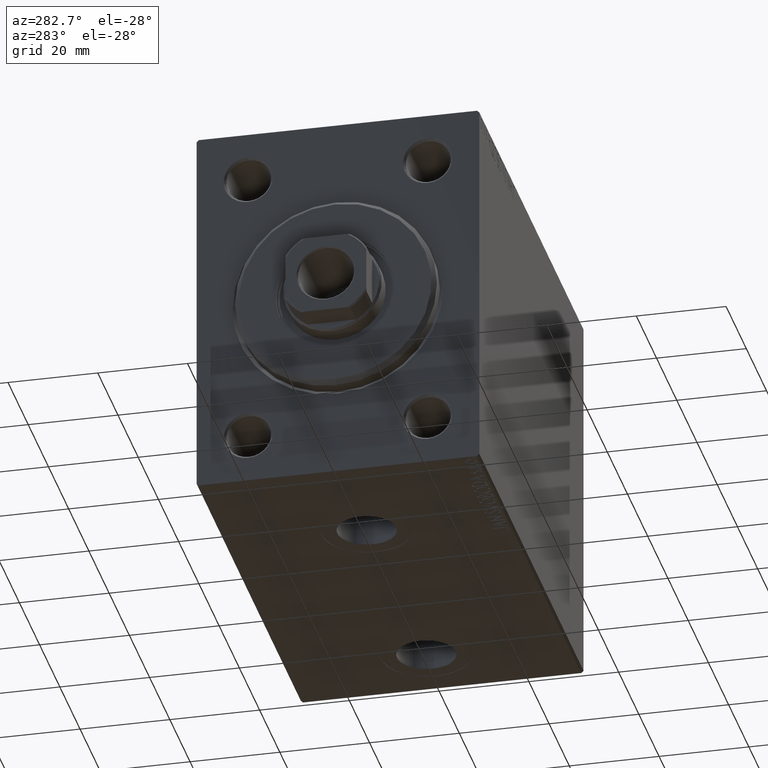
[diagram: clean part render]
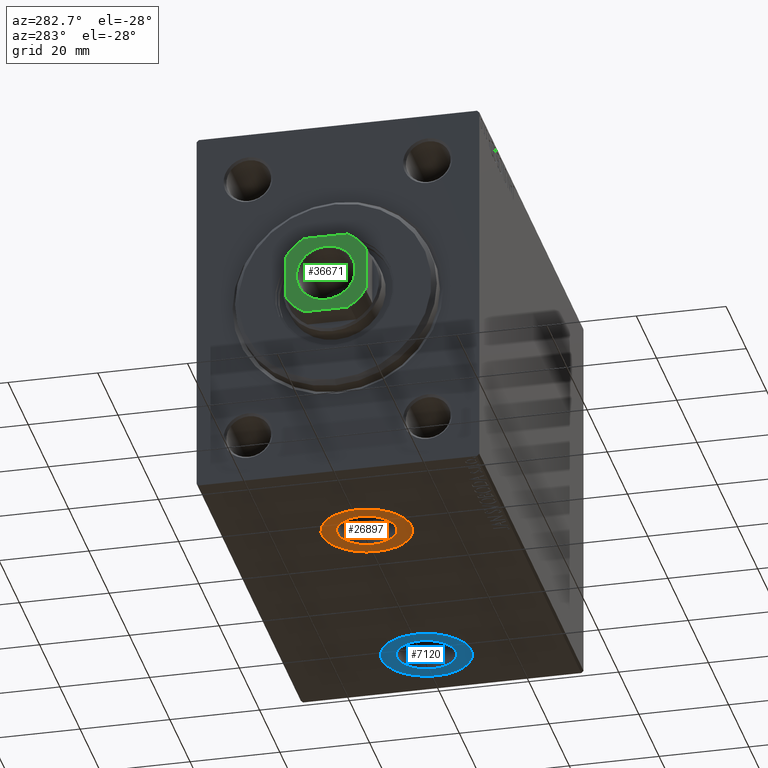
[diagram: same view with three faces highlighted in distinct colors, each labeled with its STEP entity id]
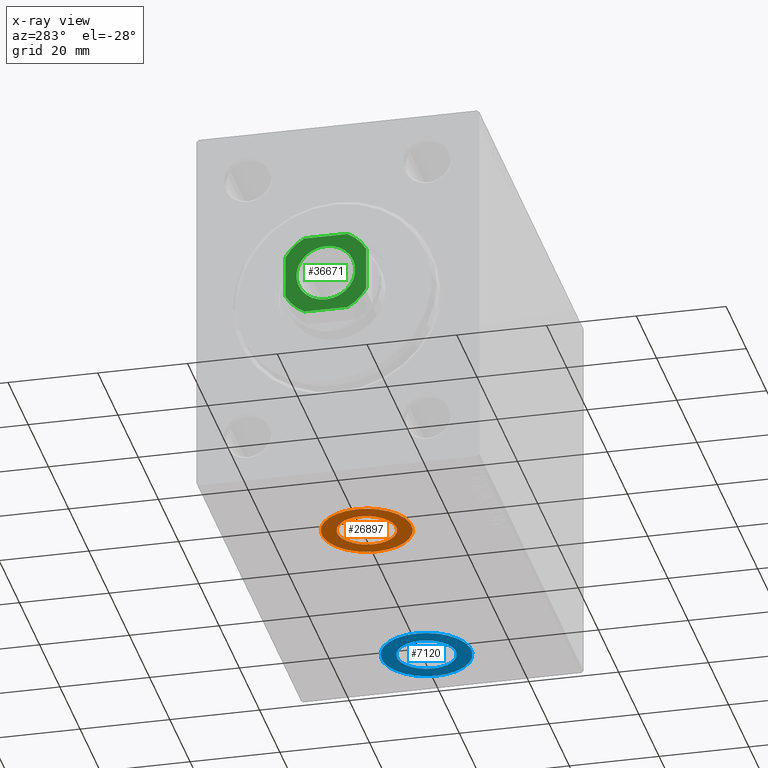
[diagram: x-ray of the same camera — body ghosted, the three highlighted faces saturated]
A machine part, auxiliary view with three faces highlighted in distinct colors.
The next image is the same camera in x-ray (body ghosted, the three faces saturated) — at least one of them is partly hidden behind the body in this view.
Their STEP definitions:

[orange] entity #26897 — the highlighted planar face has unit normal (0, 0, -1).
#2447 = CARTESIAN_POINT ( 'NONE',  ( 0.000000000000000000, 0.000000000000000000, -42.40000000000000568 ) ) ;
#4332 = DIRECTION ( 'NONE',  ( 0.000000000000000000, 0.000000000000000000, -1.000000000000000000 ) ) ;
#5323 = ORIENTED_EDGE ( 'NONE', *, *, #26699, .T. ) ;
#5539 = AXIS2_PLACEMENT_3D ( 'NONE', #2447, #13066, #31508 ) ;
#5681 = CARTESIAN_POINT ( 'NONE',  ( 35.07999999999999829, -2.900886056887840397E-15, -42.40000000000000568 ) ) ;
#5913 = CARTESIAN_POINT ( 'NONE',  ( 28.50000000000000000, -3.706703650726799044E-15, -42.40000000000000568 ) ) ;
#7324 = CARTESIAN_POINT ( 'NONE',  ( 21.91999999999999815, -3.706703650726799044E-15, -42.40000000000000568 ) ) ;
#10535 = FACE_BOUND ( 'NONE', #22976, .T. ) ;
#11039 = DIRECTION ( 'NONE',  ( -1.000000000000000000, 0.000000000000000000, 0.000000000000000000 ) ) ;
#11455 = CIRCLE ( 'NONE', #26194, 9.999999999999998224 ) ;
#12019 = AXIS2_PLACEMENT_3D ( 'NONE', #28593, #32290, #31367 ) ;
#12198 = DIRECTION ( 'NONE',  ( -1.000000000000000000, 0.000000000000000000, 0.000000000000000000 ) ) ;
#12304 = CIRCLE ( 'NONE', #40961, 6.580000000000002736 ) ;
#12761 = AXIS2_PLACEMENT_3D ( 'NONE', #5913, #30379, #12198 ) ;
#13066 = DIRECTION ( 'NONE',  ( 0.000000000000000000, 0.000000000000000000, -1.000000000000000000 ) ) ;
#13914 = VERTEX_POINT ( 'NONE', #7324 ) ;
#14168 = DIRECTION ( 'NONE',  ( -1.000000000000000000, 0.000000000000000000, 0.000000000000000000 ) ) ;
#14331 = ORIENTED_EDGE ( 'NONE', *, *, #30434, .F. ) ;
#15182 = CARTESIAN_POINT ( 'NONE',  ( 28.50000000000000000, -3.706703650726799044E-15, -42.40000000000000568 ) ) ;
#15861 = EDGE_CURVE ( 'NONE', #13914, #28615, #32630, .T. ) ;
#16757 = CARTESIAN_POINT ( 'NONE',  ( 18.50000000000000355, -3.706703650726799044E-15, -42.40000000000000568 ) ) ;
#17434 = FACE_OUTER_BOUND ( 'NONE', #29303, .T. ) ;
#17598 = VERTEX_POINT ( 'NONE', #16757 ) ;
#22976 = EDGE_LOOP ( 'NONE', ( #27503, #14331 ) ) ;
#23057 = CIRCLE ( 'NONE', #12761, 9.999999999999998224 ) ;
#24081 = CARTESIAN_POINT ( 'NONE',  ( 28.50000000000000000, -3.706703650726799044E-15, -42.40000000000000568 ) ) ;
#24274 = ORIENTED_EDGE ( 'NONE', *, *, #44309, .T. ) ;
#26194 = AXIS2_PLACEMENT_3D ( 'NONE', #15182, #4332, #11039 ) ;
#26699 = EDGE_CURVE ( 'NONE', #39103, #17598, #11455, .T. ) ;
#26897 = ADVANCED_FACE ( 'NONE', ( #10535, #17434 ), #44619, .T. ) ;
#27503 = ORIENTED_EDGE ( 'NONE', *, *, #15861, .F. ) ;
#28593 = CARTESIAN_POINT ( 'NONE',  ( 28.50000000000000000, -3.706703650726799044E-15, -42.40000000000000568 ) ) ;
#28615 = VERTEX_POINT ( 'NONE', #5681 ) ;
#29303 = EDGE_LOOP ( 'NONE', ( #24274, #5323 ) ) ;
#30379 = DIRECTION ( 'NONE',  ( 0.000000000000000000, 0.000000000000000000, -1.000000000000000000 ) ) ;
#30434 = EDGE_CURVE ( 'NONE', #28615, #13914, #12304, .T. ) ;
#31367 = DIRECTION ( 'NONE',  ( -1.000000000000000000, 0.000000000000000000, 0.000000000000000000 ) ) ;
#31508 = DIRECTION ( 'NONE',  ( -1.000000000000000000, 0.000000000000000000, -0.000000000000000000 ) ) ;
#32290 = DIRECTION ( 'NONE',  ( 0.000000000000000000, 0.000000000000000000, -1.000000000000000000 ) ) ;
#32630 = CIRCLE ( 'NONE', #12019, 6.580000000000002736 ) ;
#37261 = CARTESIAN_POINT ( 'NONE',  ( 38.50000000000000000, -2.482056851579446379E-15, -42.40000000000000568 ) ) ;
#39103 = VERTEX_POINT ( 'NONE', #37261 ) ;
#40961 = AXIS2_PLACEMENT_3D ( 'NONE', #24081, #42280, #14168 ) ;
#42280 = DIRECTION ( 'NONE',  ( 0.000000000000000000, 0.000000000000000000, -1.000000000000000000 ) ) ;
#44309 = EDGE_CURVE ( 'NONE', #17598, #39103, #23057, .T. ) ;
#44619 = PLANE ( 'NONE',  #5539 ) ;

[blue] entity #7120 — the highlighted planar face has unit normal (0, 0, -1).
#1291 = CARTESIAN_POINT ( 'NONE',  ( 94.07999999999999829, -1.365640299532237457E-14, -42.40000000000000568 ) ) ;
#1599 = AXIS2_PLACEMENT_3D ( 'NONE', #4009, #25228, #21770 ) ;
#1944 = CIRCLE ( 'NONE', #27719, 6.580000000000002736 ) ;
#2308 = CIRCLE ( 'NONE', #14842, 6.580000000000002736 ) ;
#2442 = CARTESIAN_POINT ( 'NONE',  ( 87.50000000000000000, -1.446222058916133203E-14, -42.40000000000000568 ) ) ;
#3474 = ORIENTED_EDGE ( 'NONE', *, *, #12874, .T. ) ;
#3901 = DIRECTION ( 'NONE',  ( -1.000000000000000000, 0.000000000000000000, 0.000000000000000000 ) ) ;
#4009 = CARTESIAN_POINT ( 'NONE',  ( 87.50000000000000000, -1.446222058916133203E-14, -42.40000000000000568 ) ) ;
#4130 = DIRECTION ( 'NONE',  ( 0.000000000000000000, 0.000000000000000000, -1.000000000000000000 ) ) ;
#4536 = CIRCLE ( 'NONE', #1599, 9.999999999999994671 ) ;
#4914 = PLANE ( 'NONE',  #33945 ) ;
#5360 = CARTESIAN_POINT ( 'NONE',  ( 87.50000000000000000, -1.446222058916133203E-14, -42.40000000000000568 ) ) ;
#6103 = VERTEX_POINT ( 'NONE', #44499 ) ;
#6774 = CARTESIAN_POINT ( 'NONE',  ( 77.50000000000000000, -1.446222058916133203E-14, -42.40000000000000568 ) ) ;
#7120 = ADVANCED_FACE ( 'NONE', ( #43636, #15755 ), #4914, .T. ) ;
#10401 = EDGE_CURVE ( 'NONE', #27270, #41203, #39812, .T. ) ;
#11846 = DIRECTION ( 'NONE',  ( -1.000000000000000000, 0.000000000000000000, -0.000000000000000000 ) ) ;
#12057 = EDGE_CURVE ( 'NONE', #6103, #30185, #2308, .T. ) ;
#12874 = EDGE_CURVE ( 'NONE', #41203, #27270, #4536, .T. ) ;
#13060 = DIRECTION ( 'NONE',  ( -1.000000000000000000, 0.000000000000000000, 0.000000000000000000 ) ) ;
#13061 = EDGE_LOOP ( 'NONE', ( #17086, #40959 ) ) ;
#14842 = AXIS2_PLACEMENT_3D ( 'NONE', #5360, #22442, #15753 ) ;
#15753 = DIRECTION ( 'NONE',  ( -1.000000000000000000, 0.000000000000000000, 0.000000000000000000 ) ) ;
#15755 = FACE_OUTER_BOUND ( 'NONE', #38158, .T. ) ;
#17086 = ORIENTED_EDGE ( 'NONE', *, *, #12057, .F. ) ;
#20593 = CARTESIAN_POINT ( 'NONE',  ( 97.49999999999998579, -1.323757379001398213E-14, -42.40000000000000568 ) ) ;
#21770 = DIRECTION ( 'NONE',  ( -1.000000000000000000, 0.000000000000000000, 0.000000000000000000 ) ) ;
#22442 = DIRECTION ( 'NONE',  ( 0.000000000000000000, 0.000000000000000000, -1.000000000000000000 ) ) ;
#25228 = DIRECTION ( 'NONE',  ( 0.000000000000000000, 0.000000000000000000, -1.000000000000000000 ) ) ;
#25389 = ORIENTED_EDGE ( 'NONE', *, *, #10401, .T. ) ;
#27270 = VERTEX_POINT ( 'NONE', #20593 ) ;
#27719 = AXIS2_PLACEMENT_3D ( 'NONE', #2442, #44613, #13060 ) ;
#28651 = EDGE_CURVE ( 'NONE', #30185, #6103, #1944, .T. ) ;
#29485 = CARTESIAN_POINT ( 'NONE',  ( 87.50000000000000000, -1.446222058916133203E-14, -42.40000000000000568 ) ) ;
#30185 = VERTEX_POINT ( 'NONE', #1291 ) ;
#33503 = CARTESIAN_POINT ( 'NONE',  ( 87.50000000000000000, -1.446222058916133203E-14, -42.40000000000000568 ) ) ;
#33945 = AXIS2_PLACEMENT_3D ( 'NONE', #33503, #36717, #11846 ) ;
#36717 = DIRECTION ( 'NONE',  ( 0.000000000000000000, 0.000000000000000000, -1.000000000000000000 ) ) ;
#38158 = EDGE_LOOP ( 'NONE', ( #3474, #25389 ) ) ;
#39812 = CIRCLE ( 'NONE', #44892, 9.999999999999994671 ) ;
#40959 = ORIENTED_EDGE ( 'NONE', *, *, #28651, .F. ) ;
#41203 = VERTEX_POINT ( 'NONE', #6774 ) ;
#43636 = FACE_BOUND ( 'NONE', #13061, .T. ) ;
#44499 = CARTESIAN_POINT ( 'NONE',  ( 80.91999999999998749, -1.446222058916133203E-14, -42.40000000000000568 ) ) ;
#44613 = DIRECTION ( 'NONE',  ( 0.000000000000000000, 0.000000000000000000, -1.000000000000000000 ) ) ;
#44892 = AXIS2_PLACEMENT_3D ( 'NONE', #29485, #4130, #3901 ) ;

[green] entity #36671 — the highlighted planar face has unit normal (-1, 0, 0).
#426 = CARTESIAN_POINT ( 'NONE',  ( -6.549999999999986500, 8.021436534415147471E-16, 103.0000000000000142 ) ) ;
#697 = ORIENTED_EDGE ( 'NONE', *, *, #29733, .T. ) ;
#1831 = VERTEX_POINT ( 'NONE', #15540 ) ;
#2648 = ORIENTED_EDGE ( 'NONE', *, *, #14432, .T. ) ;
#3560 = DIRECTION ( 'NONE',  ( 1.000000000000000000, 0.000000000000000000, 0.000000000000000000 ) ) ;
#3814 = DIRECTION ( 'NONE',  ( 1.927470528863119049E-16, -1.000000000000000000, 0.000000000000000000 ) ) ;
#4269 = CARTESIAN_POINT ( 'NONE',  ( -4.799999999999974065, -9.000000000000001776, 103.0000000000000142 ) ) ;
#4521 = EDGE_CURVE ( 'NONE', #27510, #11825, #43560, .T. ) ;
#5264 = AXIS2_PLACEMENT_3D ( 'NONE', #36586, #11255, #26222 ) ;
#6347 = AXIS2_PLACEMENT_3D ( 'NONE', #15301, #42500, #10938 ) ;
#6473 = VECTOR ( 'NONE', #3814, 1000.000000000000000 ) ;
#6645 = DIRECTION ( 'NONE',  ( 1.000000000000000000, 0.000000000000000000, 0.000000000000000000 ) ) ;
#7171 = DIRECTION ( 'NONE',  ( 1.000000000000000000, 0.000000000000000000, 0.000000000000000000 ) ) ;
#7338 = CARTESIAN_POINT ( 'NONE',  ( -9.000000000000001776, 8.999999999999998224, 103.0000000000000142 ) ) ;
#8768 = DIRECTION ( 'NONE',  ( 1.000000000000000000, 0.000000000000000000, 0.000000000000000000 ) ) ;
#9970 = EDGE_CURVE ( 'NONE', #45614, #19923, #40190, .T. ) ;
#10589 = CARTESIAN_POINT ( 'NONE',  ( 0.000000000000000000, 0.000000000000000000, 103.0000000000000142 ) ) ;
#10938 = DIRECTION ( 'NONE',  ( 1.000000000000000000, 0.000000000000000000, 0.000000000000000000 ) ) ;
#11255 = DIRECTION ( 'NONE',  ( 0.000000000000000000, -0.000000000000000000, -1.000000000000000000 ) ) ;
#11825 = VERTEX_POINT ( 'NONE', #26628 ) ;
#12348 = ORIENTED_EDGE ( 'NONE', *, *, #9970, .T. ) ;
#13736 = CARTESIAN_POINT ( 'NONE',  ( -9.000000000000001776, 8.999999999999998224, 103.0000000000000142 ) ) ;
#13852 = ORIENTED_EDGE ( 'NONE', *, *, #29096, .T. ) ;
#14432 = EDGE_CURVE ( 'NONE', #11825, #27510, #16372, .T. ) ;
#15189 = CARTESIAN_POINT ( 'NONE',  ( 4.799999999999967848, -9.000000000000001776, 103.0000000000000142 ) ) ;
#15301 = CARTESIAN_POINT ( 'NONE',  ( 0.000000000000000000, 0.000000000000000000, 103.0000000000000142 ) ) ;
#15379 = EDGE_CURVE ( 'NONE', #16568, #35471, #35623, .T. ) ;
#15540 = CARTESIAN_POINT ( 'NONE',  ( -9.000000000000001776, 4.800000000000007816, 103.0000000000000142 ) ) ;
#16372 = CIRCLE ( 'NONE', #25974, 6.549999999999986500 ) ;
#16399 = VECTOR ( 'NONE', #39306, 1000.000000000000000 ) ;
#16568 = VERTEX_POINT ( 'NONE', #4269 ) ;
#16724 = EDGE_CURVE ( 'NONE', #19923, #30557, #24551, .T. ) ;
#17487 = DIRECTION ( 'NONE',  ( -0.000000000000000000, 0.000000000000000000, 1.000000000000000000 ) ) ;
#17541 = CARTESIAN_POINT ( 'NONE',  ( -4.800000000000012257, 8.999999999999998224, 103.0000000000000142 ) ) ;
#18162 = LINE ( 'NONE', #7338, #18250 ) ;
#18250 = VECTOR ( 'NONE', #42354, 1000.000000000000000 ) ;
#18551 = CARTESIAN_POINT ( 'NONE',  ( 0.000000000000000000, 0.000000000000000000, 103.0000000000000142 ) ) ;
#19923 = VERTEX_POINT ( 'NONE', #30077 ) ;
#20896 = FACE_BOUND ( 'NONE', #23150, .T. ) ;
#21453 = CARTESIAN_POINT ( 'NONE',  ( 0.000000000000000000, 0.000000000000000000, 103.0000000000000142 ) ) ;
#21470 = VERTEX_POINT ( 'NONE', #27643 ) ;
#22045 = ORIENTED_EDGE ( 'NONE', *, *, #32362, .T. ) ;
#22452 = CARTESIAN_POINT ( 'NONE',  ( 8.999999999999998224, 8.999999999999998224, 103.0000000000000142 ) ) ;
#23150 = EDGE_LOOP ( 'NONE', ( #2648, #33598 ) ) ;
#24135 = DIRECTION ( 'NONE',  ( -0.000000000000000000, 0.000000000000000000, 1.000000000000000000 ) ) ;
#24551 = CIRCLE ( 'NONE', #42198, 10.19999999999998330 ) ;
#24796 = DIRECTION ( 'NONE',  ( 0.000000000000000000, -0.000000000000000000, -1.000000000000000000 ) ) ;
#24832 = CARTESIAN_POINT ( 'NONE',  ( 0.000000000000000000, 0.000000000000000000, 103.0000000000000142 ) ) ;
#25255 = CARTESIAN_POINT ( 'NONE',  ( -8.999999999999998224, -9.000000000000001776, 103.0000000000000142 ) ) ;
#25657 = CIRCLE ( 'NONE', #31547, 10.19999999999998508 ) ;
#25974 = AXIS2_PLACEMENT_3D ( 'NONE', #18551, #24796, #3560 ) ;
#26222 = DIRECTION ( 'NONE',  ( 1.000000000000000000, 0.000000000000000000, 0.000000000000000000 ) ) ;
#26469 = ORIENTED_EDGE ( 'NONE', *, *, #34424, .T. ) ;
#26628 = CARTESIAN_POINT ( 'NONE',  ( 6.549999999999986500, 0.000000000000000000, 103.0000000000000142 ) ) ;
#26952 = DIRECTION ( 'NONE',  ( -0.000000000000000000, 0.000000000000000000, 1.000000000000000000 ) ) ;
#27510 = VERTEX_POINT ( 'NONE', #426 ) ;
#27643 = CARTESIAN_POINT ( 'NONE',  ( -8.999999999999998224, -4.799999999999978506, 103.0000000000000142 ) ) ;
#28023 = VECTOR ( 'NONE', #29829, 1000.000000000000000 ) ;
#28721 = LINE ( 'NONE', #13736, #6473 ) ;
#28890 = VERTEX_POINT ( 'NONE', #17541 ) ;
#29096 = EDGE_CURVE ( 'NONE', #28890, #1831, #44605, .T. ) ;
#29733 = EDGE_CURVE ( 'NONE', #21470, #16568, #36542, .T. ) ;
#29829 = DIRECTION ( 'NONE',  ( -1.927470528863119049E-16, 1.000000000000000000, -0.000000000000000000 ) ) ;
#30077 = CARTESIAN_POINT ( 'NONE',  ( 8.999999999999998224, 4.799999999999967848, 103.0000000000000142 ) ) ;
#30557 = VERTEX_POINT ( 'NONE', #32382 ) ;
#31515 = FACE_OUTER_BOUND ( 'NONE', #33163, .T. ) ;
#31547 = AXIS2_PLACEMENT_3D ( 'NONE', #43789, #26952, #8768 ) ;
#31610 = AXIS2_PLACEMENT_3D ( 'NONE', #24832, #24135, #44840 ) ;
#31842 = DIRECTION ( 'NONE',  ( -0.000000000000000000, 0.000000000000000000, 1.000000000000000000 ) ) ;
#32362 = EDGE_CURVE ( 'NONE', #30557, #28890, #18162, .T. ) ;
#32382 = CARTESIAN_POINT ( 'NONE',  ( 4.799999999999967848, 8.999999999999998224, 103.0000000000000142 ) ) ;
#33163 = EDGE_LOOP ( 'NONE', ( #12348, #33416, #22045, #13852, #35762, #697, #39821, #26469 ) ) ;
#33416 = ORIENTED_EDGE ( 'NONE', *, *, #16724, .T. ) ;
#33554 = EDGE_CURVE ( 'NONE', #1831, #21470, #28721, .T. ) ;
#33598 = ORIENTED_EDGE ( 'NONE', *, *, #4521, .T. ) ;
#34273 = PLANE ( 'NONE',  #31610 ) ;
#34319 = AXIS2_PLACEMENT_3D ( 'NONE', #10589, #17487, #6645 ) ;
#34424 = EDGE_CURVE ( 'NONE', #35471, #45614, #25657, .T. ) ;
#35471 = VERTEX_POINT ( 'NONE', #15189 ) ;
#35623 = LINE ( 'NONE', #25255, #16399 ) ;
#35762 = ORIENTED_EDGE ( 'NONE', *, *, #33554, .T. ) ;
#36542 = CIRCLE ( 'NONE', #6347, 10.19999999999998863 ) ;
#36586 = CARTESIAN_POINT ( 'NONE',  ( 0.000000000000000000, 0.000000000000000000, 103.0000000000000142 ) ) ;
#36671 = ADVANCED_FACE ( 'NONE', ( #20896, #31515 ), #34273, .T. ) ;
#39297 = CARTESIAN_POINT ( 'NONE',  ( 9.000000000000001776, -4.799999999999967848, 103.0000000000000142 ) ) ;
#39306 = DIRECTION ( 'NONE',  ( 1.000000000000000000, 0.000000000000000000, 0.000000000000000000 ) ) ;
#39821 = ORIENTED_EDGE ( 'NONE', *, *, #15379, .T. ) ;
#40190 = LINE ( 'NONE', #22452, #28023 ) ;
#42198 = AXIS2_PLACEMENT_3D ( 'NONE', #21453, #31842, #7171 ) ;
#42354 = DIRECTION ( 'NONE',  ( -1.000000000000000000, -0.000000000000000000, -0.000000000000000000 ) ) ;
#42500 = DIRECTION ( 'NONE',  ( -0.000000000000000000, 0.000000000000000000, 1.000000000000000000 ) ) ;
#43560 = CIRCLE ( 'NONE', #5264, 6.549999999999986500 ) ;
#43789 = CARTESIAN_POINT ( 'NONE',  ( 0.000000000000000000, 0.000000000000000000, 103.0000000000000142 ) ) ;
#44605 = CIRCLE ( 'NONE', #34319, 10.20000000000000462 ) ;
#44840 = DIRECTION ( 'NONE',  ( 1.000000000000000000, 0.000000000000000000, 0.000000000000000000 ) ) ;
#45614 = VERTEX_POINT ( 'NONE', #39297 ) ;